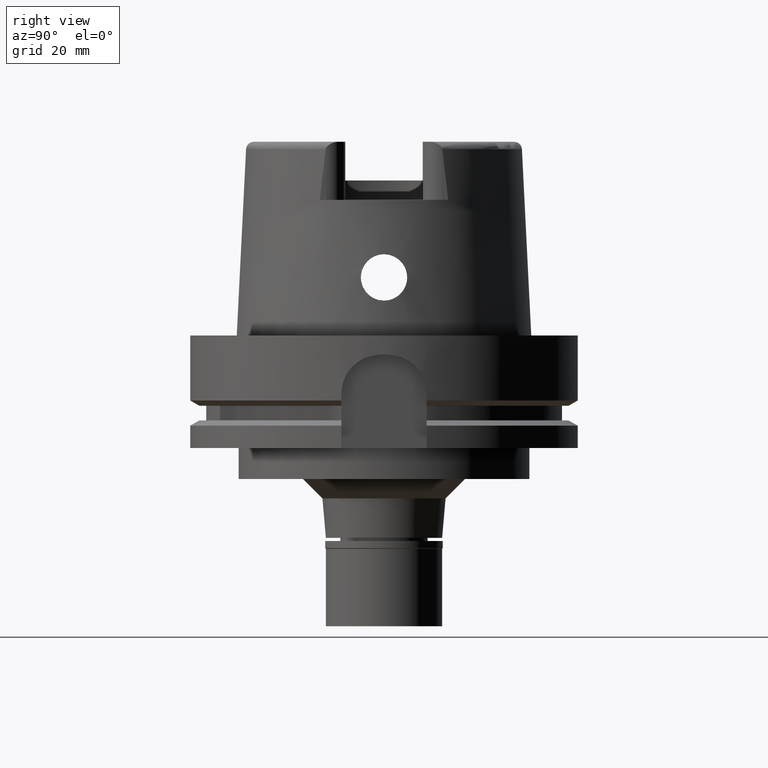
[diagram: clean part render]
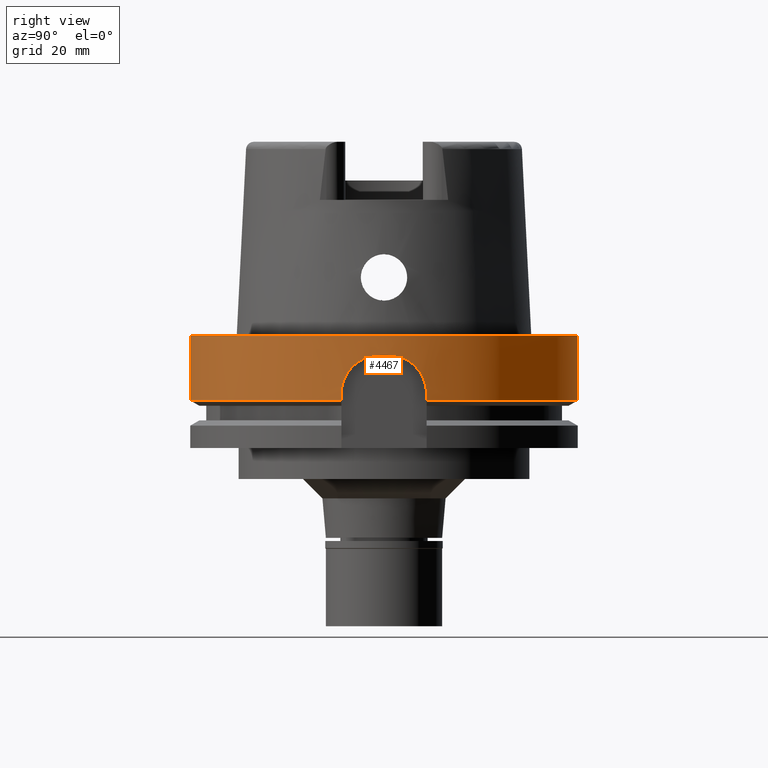
[diagram: same view with one face highlighted and labeled with its STEP entity id]
A machine part, right view. The second image highlights one B-rep face of the part: STEP entity #4467.
In plain terms, the highlighted cylindrical surface (partial cylindrical patch) has radius 50 mm, axis along (0, 0, 1).
Its self-contained STEP definition (entity closure, byte-faithful):
#35 = CARTESIAN_POINT ( 'NONE',  ( 48.77499359303000404, -11.00000000000000000, -15.00000000000000000 ) ) ;
#66 = EDGE_CURVE ( 'NONE', #216, #4527, #2198, .T. ) ;
#91 = CARTESIAN_POINT ( 'NONE',  ( 48.93720429831130048, 10.25427356527367806, -11.21073789217755667 ) ) ;
#118 = CARTESIAN_POINT ( 'NONE',  ( 49.07656918356775577, 9.565369104356175711, -9.838429308128274542 ) ) ;
#146 = CARTESIAN_POINT ( 'NONE',  ( 49.29527051060776444, 8.365870291892933963, -8.235872765966137266 ) ) ;
#216 = VERTEX_POINT ( 'NONE', #5229 ) ;
#223 = CARTESIAN_POINT ( 'NONE',  ( 49.98999899980000095, 1.000000000000000000, -5.000000000000000000 ) ) ;
#225 = CARTESIAN_POINT ( 'NONE',  ( 49.75381488994537449, 4.955804003910588840, -5.815555583169155440 ) ) ;
#241 = CARTESIAN_POINT ( 'NONE',  ( 49.41009803937203060, -7.656968126156964871, -7.537098785221502339 ) ) ;
#265 = AXIS2_PLACEMENT_3D ( 'NONE', #4889, #1010, #3128 ) ;
#288 = ORIENTED_EDGE ( 'NONE', *, *, #66, .T. ) ;
#291 = CARTESIAN_POINT ( 'NONE',  ( 49.35751660516601902, -7.989711146690599008, -7.848396119163384199 ) ) ;
#351 = CARTESIAN_POINT ( 'NONE',  ( 49.13126699837318512, -9.280029314460200851, -9.392725161889613261 ) ) ;
#368 = LINE ( 'NONE', #2456, #3113 ) ;
#442 = CARTESIAN_POINT ( 'NONE',  ( 48.77499359302998982, -10.99999999999999822, -14.38098970958476031 ) ) ;
#510 = VECTOR ( 'NONE', #4417, 1000.000000000000000 ) ;
#520 = CARTESIAN_POINT ( 'NONE',  ( 48.98876809519804709, 10.00656419546445797, -10.64231856508259888 ) ) ;
#650 = CARTESIAN_POINT ( 'NONE',  ( 49.95281529454714331, 2.252019095884108424, -5.057000454987296223 ) ) ;
#654 = CARTESIAN_POINT ( 'NONE',  ( 48.77499359303000404, -11.00000000000000000, -16.75240473580999989 ) ) ;
#662 = CARTESIAN_POINT ( 'NONE',  ( 49.52179454562497796, -6.901242480162948389, -6.920230179718693364 ) ) ;
#704 = CARTESIAN_POINT ( 'NONE',  ( 49.82800169777319610, 4.193400992230862379, -5.497997734958192773 ) ) ;
#718 = CARTESIAN_POINT ( 'NONE',  ( 49.46572591038538036, -7.288404487145704103, -7.222930835099388602 ) ) ;
#742 = CARTESIAN_POINT ( 'NONE',  ( 49.44481036322710565, -7.429753064520057571, -7.338488907131724304 ) ) ;
#743 = DIRECTION ( 'NONE',  ( 0.0000000000000000000, 0.0000000000000000000, 1.000000000000000000 ) ) ;
#777 = CARTESIAN_POINT ( 'NONE',  ( 49.77226144005545194, -4.766736469224748696, -5.736533447804870178 ) ) ;
#803 = CARTESIAN_POINT ( 'NONE',  ( 48.84379501381751254, -10.69422059862895225, -12.46040092834453539 ) ) ;
#897 = VERTEX_POINT ( 'NONE', #223 ) ;
#949 = CARTESIAN_POINT ( 'NONE',  ( 0.0000000000000000000, 0.0000000000000000000, -5.000000000000000000 ) ) ;
#971 = CARTESIAN_POINT ( 'NONE',  ( 49.12070621878443433, 9.335750471946093754, -9.475934890690227874 ) ) ;
#995 = CARTESIAN_POINT ( 'NONE',  ( 48.96160788131879116, 10.13768149274718944, -10.92674618220639360 ) ) ;
#1010 = DIRECTION ( 'NONE',  ( 0.0000000000000000000, 0.0000000000000000000, 1.000000000000000000 ) ) ;
#1022 = CARTESIAN_POINT ( 'NONE',  ( 48.78857277701303730, 10.94306393374518827, -13.75218615769272112 ) ) ;
#1031 = DIRECTION ( 'NONE',  ( 0.0000000000000000000, 0.0000000000000000000, 1.000000000000000000 ) ) ;
#1059 = CARTESIAN_POINT ( 'NONE',  ( 48.77499359303000404, -11.00000000000000000, -15.00000000000000000 ) ) ;
#1068 = ORIENTED_EDGE ( 'NONE', *, *, #2608, .T. ) ;
#1076 = CARTESIAN_POINT ( 'NONE',  ( 49.56522846814744554, 6.579371467061480239, -6.701167415851503328 ) ) ;
#1114 = EDGE_CURVE ( 'NONE', #216, #3957, #368, .T. ) ;
#1150 = CARTESIAN_POINT ( 'NONE',  ( 49.87624805648446369, -3.522971893530818743, -5.317693239801849714 ) ) ;
#1160 = CARTESIAN_POINT ( 'NONE',  ( 49.53752737390505700, 6.783967839030702329, -6.842207491616512982 ) ) ;
#1172 = CARTESIAN_POINT ( 'NONE',  ( 49.61824516511911298, -6.166927285384221413, -6.437851522978323082 ) ) ;
#1197 = CARTESIAN_POINT ( 'NONE',  ( 49.25550433176096732, -8.600067264290856883, -8.492593367972354201 ) ) ;
#1221 = CARTESIAN_POINT ( 'NONE',  ( 0.0000000000000000000, 0.0000000000000000000, 1.278976924367999843E-13 ) ) ;
#1241 = EDGE_CURVE ( 'NONE', #4863, #5086, #1677, .T. ) ;
#1388 = LINE ( 'NONE', #3106, #4113 ) ;
#1394 = CARTESIAN_POINT ( 'NONE',  ( 0.0000000000000000000, -50.00000000000000000, 9.000207986294999520E-14 ) ) ;
#1427 = CARTESIAN_POINT ( 'NONE',  ( 49.28444375757049301, 8.429552219610148001, -8.305955251148585461 ) ) ;
#1455 = ORIENTED_EDGE ( 'NONE', *, *, #2324, .F. ) ;
#1510 = CARTESIAN_POINT ( 'NONE',  ( 49.56133434484618050, 6.608618076807077912, -6.720892485129142280 ) ) ;
#1528 = VERTEX_POINT ( 'NONE', #2051 ) ;
#1546 = CARTESIAN_POINT ( 'NONE',  ( 49.66313321694958205, -5.795312436810299950, -6.223213497135714256 ) ) ;
#1557 = CARTESIAN_POINT ( 'NONE',  ( 49.55686768344109794, 6.641966253643804663, -6.743537119833312943 ) ) ;
#1570 = CARTESIAN_POINT ( 'NONE',  ( 49.76923908604081248, -4.798215348615335607, -5.749397671476295102 ) ) ;
#1590 = CARTESIAN_POINT ( 'NONE',  ( 49.64285532168307213, 5.971884125503537533, -6.317313123507489081 ) ) ;
#1604 = CARTESIAN_POINT ( 'NONE',  ( 49.29774453608951745, -8.355866763254578444, -8.213089188159155896 ) ) ;
#1615 = CARTESIAN_POINT ( 'NONE',  ( 49.33579164442281240, 8.122802602936566529, -7.981028084474123041 ) ) ;
#1628 = CARTESIAN_POINT ( 'NONE',  ( 49.74236008375454077, -5.076685091357270529, -5.864031950039201746 ) ) ;
#1655 = CARTESIAN_POINT ( 'NONE',  ( 49.57421791566365243, -6.511295992016687073, -6.655789839889640902 ) ) ;
#1656 = EDGE_CURVE ( 'NONE', #1528, #4863, #4356, .T. ) ;
#1663 = AXIS2_PLACEMENT_3D ( 'NONE', #1221, #2546, #5161 ) ;
#1677 = CIRCLE ( 'NONE', #2752, 50.00000000000000000 ) ;
#1688 = CARTESIAN_POINT ( 'NONE',  ( 48.94538310691532246, -10.21515207871480158, -11.11649793287720023 ) ) ;
#1741 = CARTESIAN_POINT ( 'NONE',  ( 48.95074577783785941, -10.18944028085936360, -11.05580408360678035 ) ) ;
#1784 = CARTESIAN_POINT ( 'NONE',  ( 0.0000000000000000000, 0.0000000000000000000, -16.75240473580999989 ) ) ;
#1790 = CARTESIAN_POINT ( 'NONE',  ( 48.93204932106057470, 10.27888066096630304, -11.27130461238420267 ) ) ;
#1840 = CARTESIAN_POINT ( 'NONE',  ( 49.23336761373112580, 8.723941552181074144, -8.646461823868555996 ) ) ;
#1902 = CARTESIAN_POINT ( 'NONE',  ( 48.92624766774750356, 10.30653459417122875, -11.34054824619455637 ) ) ;
#1925 = CARTESIAN_POINT ( 'NONE',  ( 49.98999899980000095, 1.000000000000000000, -5.000000000000000000 ) ) ;
#1973 = CARTESIAN_POINT ( 'NONE',  ( 49.82619601168303092, -4.165932276105455578, -5.512860155647918425 ) ) ;
#1982 = CARTESIAN_POINT ( 'NONE',  ( 49.75969433099766803, 4.896275058928035051, -5.790242509405269189 ) ) ;
#1996 = CARTESIAN_POINT ( 'NONE',  ( 49.97777199570051465, -1.611227922889952868, -5.000000000000001776 ) ) ;
#2010 = CARTESIAN_POINT ( 'NONE',  ( 49.44397705981323554, 7.437641546367484757, -7.340743958009184666 ) ) ;
#2024 = CARTESIAN_POINT ( 'NONE',  ( 49.34900665889858828, -8.042112749069479705, -7.900079859199729881 ) ) ;
#2051 = CARTESIAN_POINT ( 'NONE',  ( 0.0000000000000000000, -50.00000000000000000, 1.278976924367999843E-13 ) ) ;
#2081 = DIRECTION ( 'NONE',  ( 0.9754998718605770724, 0.2199999999999950051, 0.0000000000000000000 ) ) ;
#2135 = CARTESIAN_POINT ( 'NONE',  ( 48.96176082046442701, -10.13648416590568502, -10.93369064381549194 ) ) ;
#2182 = ORIENTED_EDGE ( 'NONE', *, *, #1241, .T. ) ;
#2198 = CIRCLE ( 'NONE', #2833, 50.00000000000000711 ) ;
#2209 = CARTESIAN_POINT ( 'NONE',  ( 0.0000000000000000000, 50.00000000000000000, 9.000207986294999520E-14 ) ) ;
#2228 = VECTOR ( 'NONE', #3138, 1000.000000000000000 ) ;
#2238 = CARTESIAN_POINT ( 'NONE',  ( 49.05095482307761046, 9.696311395922711185, -10.05999921970264488 ) ) ;
#2267 = CARTESIAN_POINT ( 'NONE',  ( 49.14752263990278180, 9.194527747840757215, -9.263340095555649967 ) ) ;
#2271 = EDGE_CURVE ( 'NONE', #4943, #5086, #4898, .T. ) ;
#2294 = CARTESIAN_POINT ( 'NONE',  ( 49.25298270557434677, 8.612590506376010424, -8.512905818751294262 ) ) ;
#2324 = EDGE_CURVE ( 'NONE', #2973, #4527, #1388, .T. ) ;
#2326 = CARTESIAN_POINT ( 'NONE',  ( 48.93456558098323939, 10.26687272114697613, -11.24165145567659430 ) ) ;
#2387 = CARTESIAN_POINT ( 'NONE',  ( 49.57203231308032088, -6.527909914131410751, -6.666797204931386389 ) ) ;
#2405 = CARTESIAN_POINT ( 'NONE',  ( 49.73093527623380794, 5.180377013430555344, -5.915370642000464585 ) ) ;
#2429 = CARTESIAN_POINT ( 'NONE',  ( 49.51649341222217515, 6.935392822594833362, -6.950989978102472655 ) ) ;
#2449 = ORIENTED_EDGE ( 'NONE', *, *, #3194, .F. ) ;
#2456 = CARTESIAN_POINT ( 'NONE',  ( 48.77499359303000404, 11.00000000000000000, -16.75240473580999989 ) ) ;
#2457 = CARTESIAN_POINT ( 'NONE',  ( 49.50012422996865524, 7.051113948680571397, -7.036905254289896661 ) ) ;
#2468 = CARTESIAN_POINT ( 'NONE',  ( 49.16027409345827692, -9.125645311083095734, -9.170852822761636602 ) ) ;
#2499 = ORIENTED_EDGE ( 'NONE', *, *, #1114, .F. ) ;
#2500 = CARTESIAN_POINT ( 'NONE',  ( 49.57046751975679655, -6.539781382104781216, -6.674687371049138562 ) ) ;
#2546 = DIRECTION ( 'NONE',  ( 0.0000000000000000000, 0.0000000000000000000, -1.000000000000000000 ) ) ;
#2554 = CARTESIAN_POINT ( 'NONE',  ( 49.05318653075700297, -9.685954689159467890, -10.03384690580605465 ) ) ;
#2587 = CARTESIAN_POINT ( 'NONE',  ( 49.12721376168187959, -9.301443656504723378, -9.424513683907219885 ) ) ;
#2597 = ORIENTED_EDGE ( 'NONE', *, *, #4685, .F. ) ;
#2608 = EDGE_CURVE ( 'NONE', #3427, #897, #2929, .T. ) ;
#2614 = CARTESIAN_POINT ( 'NONE',  ( 49.12641156278154853, -9.305679076528123872, -9.430825059240529384 ) ) ;
#2642 = CARTESIAN_POINT ( 'NONE',  ( 48.78875387718748158, -10.94236534398194216, -13.74427398433342340 ) ) ;
#2663 = CARTESIAN_POINT ( 'NONE',  ( 48.87683747290292757, 10.53978459074161478, -11.99662588666631713 ) ) ;
#2670 = CARTESIAN_POINT ( 'NONE',  ( 0.0000000000000000000, -50.00000000000000000, -16.75240473580999989 ) ) ;
#2694 = CARTESIAN_POINT ( 'NONE',  ( 48.91492284048040062, 10.36038691490754360, -11.47923629238383292 ) ) ;
#2713 = DIRECTION ( 'NONE',  ( 0.0000000000000000000, -1.000000000000000000, 0.0000000000000000000 ) ) ;
#2721 = CARTESIAN_POINT ( 'NONE',  ( 49.32052251116780184, 8.215218342865604484, -8.075766957088397646 ) ) ;
#2752 = AXIS2_PLACEMENT_3D ( 'NONE', #1784, #4759, #2713 ) ;
#2800 = CARTESIAN_POINT ( 'NONE',  ( 49.60597765476298093, 6.272245852071359096, -6.494812296754378877 ) ) ;
#2833 = AXIS2_PLACEMENT_3D ( 'NONE', #2917, #743, #2081 ) ;
#2837 = CARTESIAN_POINT ( 'NONE',  ( 49.35242107179028181, -8.021117418997507187, -7.879316875116688657 ) ) ;
#2868 = CARTESIAN_POINT ( 'NONE',  ( 49.98999899980000095, -1.000000000000000000, -5.000000000000000000 ) ) ;
#2879 = CARTESIAN_POINT ( 'NONE',  ( 49.56495839145625126, 6.581404754178367789, -6.702535161400354546 ) ) ;
#2893 = CARTESIAN_POINT ( 'NONE',  ( 49.20051615470848105, -8.907333959337524476, -8.876201299064174322 ) ) ;
#2916 = CARTESIAN_POINT ( 'NONE',  ( 49.14914333964527771, -9.185221579449693863, -9.254598777102360785 ) ) ;
#2917 = CARTESIAN_POINT ( 'NONE',  ( 0.0000000000000000000, 0.0000000000000000000, -16.75240473580999989 ) ) ;
#2929 = CIRCLE ( 'NONE', #4842, 49.99999999999999289 ) ;
#2973 = VERTEX_POINT ( 'NONE', #2209 ) ;
#3001 = CARTESIAN_POINT ( 'NONE',  ( 49.12842114798623072, -9.295067625327090965, -9.415024158710656010 ) ) ;
#3106 = CARTESIAN_POINT ( 'NONE',  ( 0.0000000000000000000, 50.00000000000000000, 9.000207986294999520E-14 ) ) ;
#3113 = VECTOR ( 'NONE', #4296, 1000.000000000000000 ) ;
#3128 = DIRECTION ( 'NONE',  ( 0.0000000000000000000, 1.000000000000000000, 0.0000000000000000000 ) ) ;
#3137 = CARTESIAN_POINT ( 'NONE',  ( 49.98999899980000095, -1.000000000000000000, -5.000000000000000000 ) ) ;
#3138 = DIRECTION ( 'NONE',  ( -5.027793947017000297E-13, 6.690209687562999968E-14, -1.000000000000000000 ) ) ;
#3141 = CARTESIAN_POINT ( 'NONE',  ( 49.03475261609761304, 9.777875502264055996, -10.20669235385792284 ) ) ;
#3194 = EDGE_CURVE ( 'NONE', #3957, #897, #3919, .T. ) ;
#3219 = CARTESIAN_POINT ( 'NONE',  ( 49.56525223171463779, 6.579191908116110987, -6.701047088326501644 ) ) ;
#3255 = CARTESIAN_POINT ( 'NONE',  ( 49.39797076423408839, -7.735228540725920254, -7.607518504241943980 ) ) ;
#3282 = CARTESIAN_POINT ( 'NONE',  ( 49.60418535499682946, -6.279522648632882564, -6.506439944291944499 ) ) ;
#3283 = CIRCLE ( 'NONE', #1663, 50.00000000000000000 ) ;
#3303 = CARTESIAN_POINT ( 'NONE',  ( 49.76383490266047005, 4.853957148797763743, -5.772481463352479025 ) ) ;
#3326 = CARTESIAN_POINT ( 'NONE',  ( 49.74176433469596503, 5.075847372730420304, -5.867783960629020079 ) ) ;
#3338 = CARTESIAN_POINT ( 'NONE',  ( 49.56999360001530874, -6.543372797554056319, -6.677078640024874723 ) ) ;
#3402 = CARTESIAN_POINT ( 'NONE',  ( 49.00681241852824144, -9.916925832094891646, -10.47058998773629490 ) ) ;
#3427 = VERTEX_POINT ( 'NONE', #3137 ) ;
#3429 = CARTESIAN_POINT ( 'NONE',  ( 48.88507586629001622, -10.50362418948819787, -11.81325723718938114 ) ) ;
#3456 = CARTESIAN_POINT ( 'NONE',  ( 48.94311585874655890, -10.22600908022345045, -11.14243030049899374 ) ) ;
#3505 = CARTESIAN_POINT ( 'NONE',  ( 48.93624971805922286, 10.25883267187403369, -11.22188785703840175 ) ) ;
#3531 = CARTESIAN_POINT ( 'NONE',  ( 48.82931032896221524, 10.75943768901121977, -12.79573914016357605 ) ) ;
#3543 = CYLINDRICAL_SURFACE ( 'NONE', #265, 50.00000000000000000 ) ;
#3616 = CARTESIAN_POINT ( 'NONE',  ( 49.08970412631786218, 9.497749254993221868, -9.727263145883375373 ) ) ;
#3639 = CARTESIAN_POINT ( 'NONE',  ( 49.33800081811808980, 8.109361115333474146, -7.967431103952185900 ) ) ;
#3678 = CARTESIAN_POINT ( 'NONE',  ( 49.79471274693069205, -4.526856397481059169, -5.641893968303087981 ) ) ;
#3690 = CARTESIAN_POINT ( 'NONE',  ( 49.39715944851651841, 7.748618570493976065, -7.604565779594008923 ) ) ;
#3704 = CARTESIAN_POINT ( 'NONE',  ( 49.95319395790244243, -2.242612221345071877, -5.056181163374772858 ) ) ;
#3719 = CARTESIAN_POINT ( 'NONE',  ( 49.76449959219792873, 4.847137998702327089, -5.769634468973713126 ) ) ;
#3733 = CARTESIAN_POINT ( 'NONE',  ( 49.83928797758802176, -4.005200320489957555, -5.460771316439762657 ) ) ;
#3750 = CARTESIAN_POINT ( 'NONE',  ( 49.70861047783555620, 5.391461335641176689, -6.014498482324370343 ) ) ;
#3763 = CARTESIAN_POINT ( 'NONE',  ( 49.80540015341633620, -4.406617402740176992, -5.597755838516927263 ) ) ;
#3793 = CARTESIAN_POINT ( 'NONE',  ( 49.55026962747101749, -6.692786078293994301, -6.776623421507758316 ) ) ;
#3919 = B_SPLINE_CURVE_WITH_KNOTS ( 'NONE', 3,
 ( #3930, #4389, #1022, #3531, #5297, #2663, #4416, #2694, #1902, #1790, #2326, #3505, #91, #995, #520, #3141, #2238, #118, #3616, #4040, #4932, #5266, #3955, #971, #5345, #2267, #4442, #1840, #2294, #1427, #146, #4877, #2721, #4012, #1615, #3639, #5401, #5071, #3690, #2010, #2457, #2429, #1160, #4525, #4958, #1557, #1510, #5454, #4150, #2879, #3219, #1076, #2800, #1590, #5046, #3750, #2405, #3326, #225, #1982, #5371, #3303, #3719, #704, #4609, #650, #5425, #1925 ),
 .UNSPECIFIED., .F., .F.,
 ( 4, 2, 2, 1, 1, 1, 1, 2, 2, 2, 2, 1, 1, 1, 1, 2, 2, 2, 2, 2, 1, 1, 1, 2, 2, 2, 2, 2, 1, 1, 1, 1, 2, 2, 2, 2, 1, 1, 1, 2, 2, 2, 4 ),
 ( 0.0000000000000000000, 0.1249999999999632794, 0.1874999999999449329, 0.2187499999999358291, 0.2343749999999313050, 0.2421874999999292233, 0.2460937499999281408, 0.2480468749999273637, 0.2499999999999265587, 0.3124999999999095168, 0.3437499999999011902, 0.3593749999998970268, 0.3671874999998950839, 0.3710937499998940292, 0.3730468749998936406, 0.3740234374998936406, 0.3749999999998935851, 0.4374999999998912537, 0.4687499999998898104, 0.4843749999998892553, 0.4921874999998888112, 0.4960937499998884781, 0.4980468749998883671, 0.4990234374998884781, 0.4999999999998886446, 0.5624999999998946398, 0.5937499999998976374, 0.6093749999998994138, 0.6171874999999005240, 0.6210937499999011902, 0.6230468749999014122, 0.6240234374999014122, 0.6245117187499014122, 0.6249999999999013012, 0.6874999999999157341, 0.7187499999999229505, 0.7343749999999267253, 0.7421874999999286127, 0.7460937499999296119, 0.7480468749999301670, 0.7499999999999306111, 0.8749999999999653610, 1.000000000000000000 ),
 .UNSPECIFIED. ) ;
#3930 = CARTESIAN_POINT ( 'NONE',  ( 48.77499359303000404, 11.00000000000000000, -15.00000000000000000 ) ) ;
#3935 = CARTESIAN_POINT ( 'NONE',  ( 49.08763419605604383, -9.510332042752491333, -9.736533737849445203 ) ) ;
#3955 = CARTESIAN_POINT ( 'NONE',  ( 49.11953311378839970, 9.341922580121188702, -9.485259849303199431 ) ) ;
#3957 = VERTEX_POINT ( 'NONE', #4589 ) ;
#3994 = FACE_OUTER_BOUND ( 'NONE', #4536, .T. ) ;
#4012 = CARTESIAN_POINT ( 'NONE',  ( 49.33066477474506684, 8.153926039549697080, -8.012692684120178654 ) ) ;
#4040 = CARTESIAN_POINT ( 'NONE',  ( 49.10560181057681461, 9.414973499160344872, -9.597069030401140566 ) ) ;
#4113 = VECTOR ( 'NONE', #4847, 1000.000000000000000 ) ;
#4138 = CARTESIAN_POINT ( 'NONE',  ( 49.77034752852134858, -4.786698336665407005, -5.744675483846008568 ) ) ;
#4150 = CARTESIAN_POINT ( 'NONE',  ( 49.56451591241057741, 6.584735606234186633, -6.704776024276121404 ) ) ;
#4162 = CARTESIAN_POINT ( 'NONE',  ( 49.36922358130969712, -7.917053263282570974, -7.777801394724596307 ) ) ;
#4220 = CARTESIAN_POINT ( 'NONE',  ( 49.13707316185430329, -9.249304268221854031, -9.347503844288992170 ) ) ;
#4251 = ORIENTED_EDGE ( 'NONE', *, *, #1656, .T. ) ;
#4274 = CARTESIAN_POINT ( 'NONE',  ( 48.99223727873862799, -9.988510812110060755, -10.61464865696980908 ) ) ;
#4296 = DIRECTION ( 'NONE',  ( 5.027793947017000297E-13, 7.095676941355000738E-14, 1.000000000000000000 ) ) ;
#4310 = CARTESIAN_POINT ( 'NONE',  ( 49.12620687770654371, -9.306759742224025800, -9.432435516188906632 ) ) ;
#4338 = CARTESIAN_POINT ( 'NONE',  ( 48.97169891548417553, -10.08840653668993781, -10.82782731911050256 ) ) ;
#4356 = LINE ( 'NONE', #1394, #510 ) ;
#4389 = CARTESIAN_POINT ( 'NONE',  ( 48.77499359303000404, 10.99999999999999822, -14.38474386437709818 ) ) ;
#4416 = CARTESIAN_POINT ( 'NONE',  ( 48.89338710338227401, 10.46229290178589721, -11.75732859588302937 ) ) ;
#4417 = DIRECTION ( 'NONE',  ( 0.0000000000000000000, 2.969006079282000197E-14, -1.000000000000000000 ) ) ;
#4442 = CARTESIAN_POINT ( 'NONE',  ( 49.17859916666403564, 9.029240657144610438, -9.030228120109413226 ) ) ;
#4467 = ADVANCED_FACE ( 'NONE', ( #3994 ), #3543, .T. ) ;
#4525 = CARTESIAN_POINT ( 'NONE',  ( 49.54395205918311262, 6.737176145010299599, -6.809301598749887496 ) ) ;
#4527 = VERTEX_POINT ( 'NONE', #5279 ) ;
#4536 = EDGE_LOOP ( 'NONE', ( #2449, #2499, #288, #1455, #5055, #4251, #2182, #5503, #2597, #1068 ) ) ;
#4538 = CARTESIAN_POINT ( 'NONE',  ( 49.57857109234935677, -6.478090229250308418, -6.633911966535182003 ) ) ;
#4589 = CARTESIAN_POINT ( 'NONE',  ( 48.77499359303000404, 11.00000000000000000, -15.00000000000000000 ) ) ;
#4609 = CARTESIAN_POINT ( 'NONE',  ( 49.87797447716990717, 3.540891714778603205, -5.305947129174982457 ) ) ;
#4623 = CARTESIAN_POINT ( 'NONE',  ( 49.18358211726436480, -8.999916655384646802, -8.998199632724364960 ) ) ;
#4653 = CARTESIAN_POINT ( 'NONE',  ( 49.78173752066418700, -4.666863409703410959, -5.696379719018892729 ) ) ;
#4685 = EDGE_CURVE ( 'NONE', #3427, #4943, #5143, .T. ) ;
#4759 = DIRECTION ( 'NONE',  ( 0.0000000000000000000, 0.0000000000000000000, 1.000000000000000000 ) ) ;
#4797 = CARTESIAN_POINT ( 'NONE',  ( 48.94097702067983846, -10.23624613488826895, -11.16700207307959758 ) ) ;
#4842 = AXIS2_PLACEMENT_3D ( 'NONE', #949, #1031, #5053 ) ;
#4847 = DIRECTION ( 'NONE',  ( 0.0000000000000000000, -2.969006079282000197E-14, -1.000000000000000000 ) ) ;
#4863 = VERTEX_POINT ( 'NONE', #2670 ) ;
#4877 = CARTESIAN_POINT ( 'NONE',  ( 49.31202024372149850, 8.266137334609583220, -8.129365834699816773 ) ) ;
#4889 = CARTESIAN_POINT ( 'NONE',  ( 0.0000000000000000000, 0.0000000000000000000, -74.21500000000000341 ) ) ;
#4898 = LINE ( 'NONE', #35, #2228 ) ;
#4932 = CARTESIAN_POINT ( 'NONE',  ( 49.11369404880225886, 9.372598822228622950, -9.531868872109276580 ) ) ;
#4943 = VERTEX_POINT ( 'NONE', #1059 ) ;
#4958 = CARTESIAN_POINT ( 'NONE',  ( 49.55270913417583500, 6.672744139526859186, -6.764670223224646506 ) ) ;
#4996 = CARTESIAN_POINT ( 'NONE',  ( 49.89780035065744812, -3.201458932657425205, -5.239903529427205164 ) ) ;
#5028 = CARTESIAN_POINT ( 'NONE',  ( 49.57109369463594106, -6.535032488285756003, -6.671529342976307397 ) ) ;
#5046 = CARTESIAN_POINT ( 'NONE',  ( 49.69283837027140294, 5.534888791137301922, -6.085856494301901343 ) ) ;
#5053 = DIRECTION ( 'NONE',  ( 0.9997999799959990108, -0.02000000000000000389, 0.0000000000000000000 ) ) ;
#5055 = ORIENTED_EDGE ( 'NONE', *, *, #5392, .T. ) ;
#5058 = CARTESIAN_POINT ( 'NONE',  ( 49.64570545806019908, -5.942969356358075217, -6.305337821274757282 ) ) ;
#5071 = CARTESIAN_POINT ( 'NONE',  ( 49.34007748869608889, 8.096714172673745935, -7.954667811821690471 ) ) ;
#5085 = CARTESIAN_POINT ( 'NONE',  ( 49.37894510074772825, -7.855899081738148659, -7.719912821864317820 ) ) ;
#5086 = VERTEX_POINT ( 'NONE', #654 ) ;
#5143 = B_SPLINE_CURVE_WITH_KNOTS ( 'NONE', 3,
 ( #2868, #1996, #3704, #4996, #1150, #3733, #1973, #3763, #3678, #4653, #5413, #777, #4138, #1570, #1628, #5437, #1546, #5058, #1172, #3282, #5498, #4538, #1655, #2387, #5028, #2500, #3338, #3793, #662, #718, #742, #241, #3255, #5085, #4162, #291, #2837, #2024, #5471, #1604, #1197, #2893, #4623, #2468, #2916, #4220, #351, #3001, #2587, #2614, #4310, #3935, #2554, #3402, #4274, #4338, #2135, #1741, #1688, #3456, #5172, #4797, #3429, #803, #2642, #442, #5198 ),
 .UNSPECIFIED., .F., .F.,
 ( 4, 2, 2, 2, 1, 1, 1, 2, 2, 2, 2, 1, 1, 1, 1, 1, 2, 2, 2, 2, 2, 1, 1, 2, 2, 2, 2, 1, 1, 1, 1, 2, 2, 2, 2, 1, 1, 1, 2, 2, 2, 4 ),
 ( 0.0000000000000000000, 0.1249999999999988065, 0.1874999999999982236, 0.2187499999999979183, 0.2343749999999978073, 0.2421874999999976963, 0.2460937499999977518, 0.2480468749999978351, 0.2499999999999978906, 0.3125000000000006661, 0.3437500000000021649, 0.3593750000000028866, 0.3671875000000031641, 0.3710937500000032196, 0.3730468750000033307, 0.3740234375000032752, 0.3745117187500031641, 0.3750000000000029976, 0.4375000000000036637, 0.4687500000000039413, 0.4843750000000041078, 0.4921875000000041078, 0.4960937500000040523, 0.4980468750000038858, 0.5000000000000037748, 0.5625000000000006661, 0.5937499999999988898, 0.6093749999999983347, 0.6171874999999981126, 0.6210937499999980016, 0.6230468749999978906, 0.6240234374999980016, 0.6249999999999981126, 0.6874999999999990008, 0.7187499999999995559, 0.7343750000000000000, 0.7421875000000001110, 0.7460937500000002220, 0.7480468750000003331, 0.7500000000000003331, 0.8750000000000002220, 1.000000000000000000 ),
 .UNSPECIFIED. ) ;
#5161 = DIRECTION ( 'NONE',  ( 0.0000000000000000000, 1.000000000000000000, 0.0000000000000000000 ) ) ;
#5172 = CARTESIAN_POINT ( 'NONE',  ( 48.94161125760504660, -10.23321121206990902, -11.15970076059425686 ) ) ;
#5198 = CARTESIAN_POINT ( 'NONE',  ( 48.77499359303000404, -11.00000000000000000, -15.00000000000000000 ) ) ;
#5229 = CARTESIAN_POINT ( 'NONE',  ( 48.77499359303000404, 11.00000000000000000, -16.75240473580999989 ) ) ;
#5266 = CARTESIAN_POINT ( 'NONE',  ( 49.11777601693897566, 9.351162884262784303, -9.499245795226467948 ) ) ;
#5279 = CARTESIAN_POINT ( 'NONE',  ( 1.065814103639999922E-14, 50.00000000000000000, -16.75240473580999989 ) ) ;
#5297 = CARTESIAN_POINT ( 'NONE',  ( 48.84628430894104412, 10.68188746904904818, -12.47571011049694789 ) ) ;
#5345 = CARTESIAN_POINT ( 'NONE',  ( 49.12148124762067880, 9.331670381130544811, -9.469784525063902336 ) ) ;
#5371 = CARTESIAN_POINT ( 'NONE',  ( 49.76218284075456921, 4.870869903921504651, -5.779563446568393381 ) ) ;
#5392 = EDGE_CURVE ( 'NONE', #2973, #1528, #3283, .T. ) ;
#5401 = CARTESIAN_POINT ( 'NONE',  ( 49.33947625476681509, 8.100377197003586716, -7.958360673383904960 ) ) ;
#5413 = CARTESIAN_POINT ( 'NONE',  ( 49.77512326118930730, -4.736787359537546926, -5.724374289179295694 ) ) ;
#5425 = CARTESIAN_POINT ( 'NONE',  ( 49.97768333252763284, 1.615660194459266563, -4.999999999999992006 ) ) ;
#5437 = CARTESIAN_POINT ( 'NONE',  ( 49.71277918440375032, -5.358872242983421685, -5.993988479726358065 ) ) ;
#5454 = CARTESIAN_POINT ( 'NONE',  ( 49.56347143069762495, 6.592588605008202762, -6.710066077302814236 ) ) ;
#5471 = CARTESIAN_POINT ( 'NONE',  ( 49.34706058579362775, -8.054047993547818862, -7.911941462384771917 ) ) ;
#5498 = CARTESIAN_POINT ( 'NONE',  ( 49.58720533179693746, -6.411770298593870265, -6.590701201621393501 ) ) ;
#5503 = ORIENTED_EDGE ( 'NONE', *, *, #2271, .F. ) ;